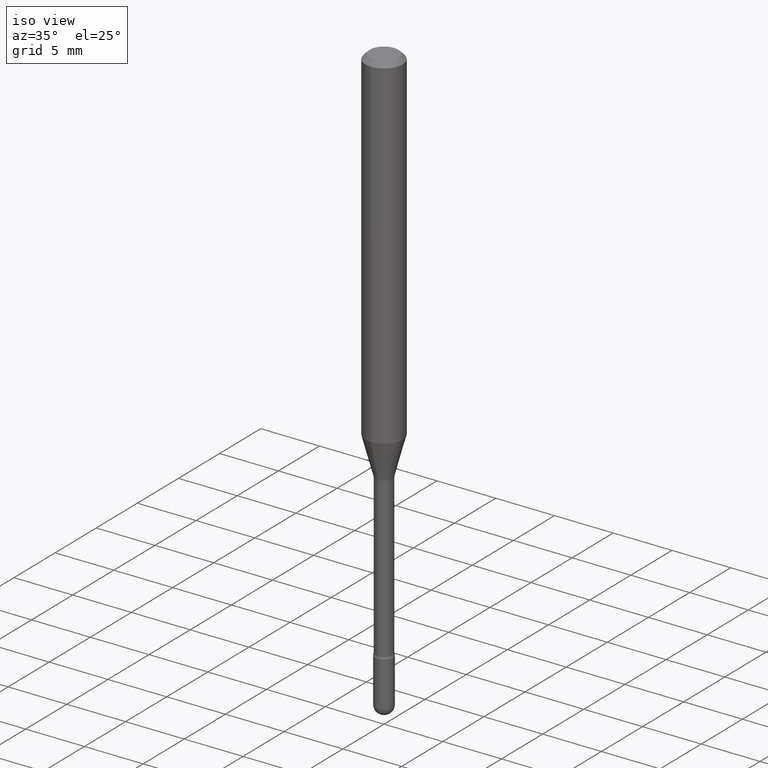
[diagram: clean part render]
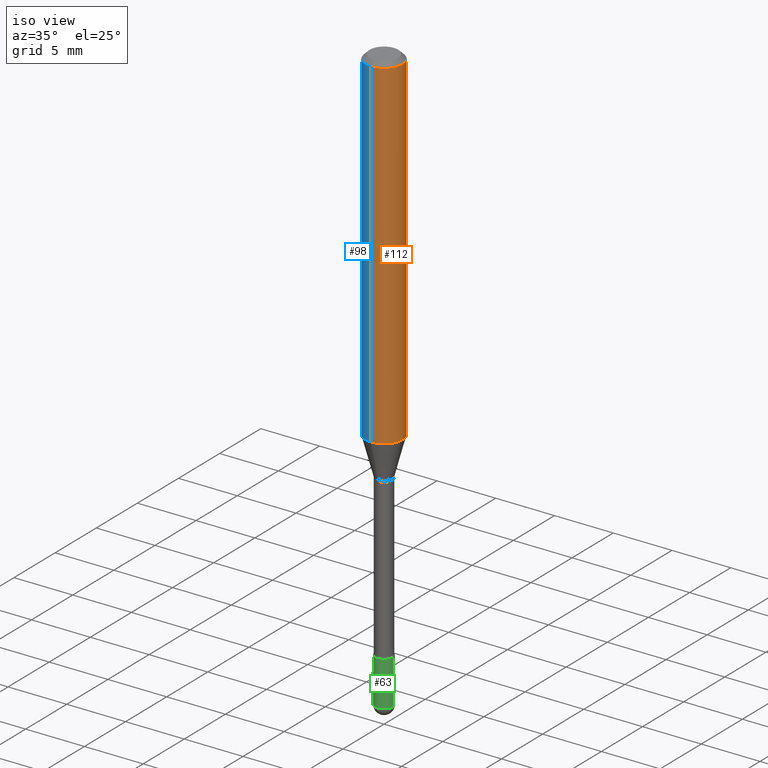
[diagram: same view with three faces highlighted in distinct colors, each labeled with its STEP entity id]
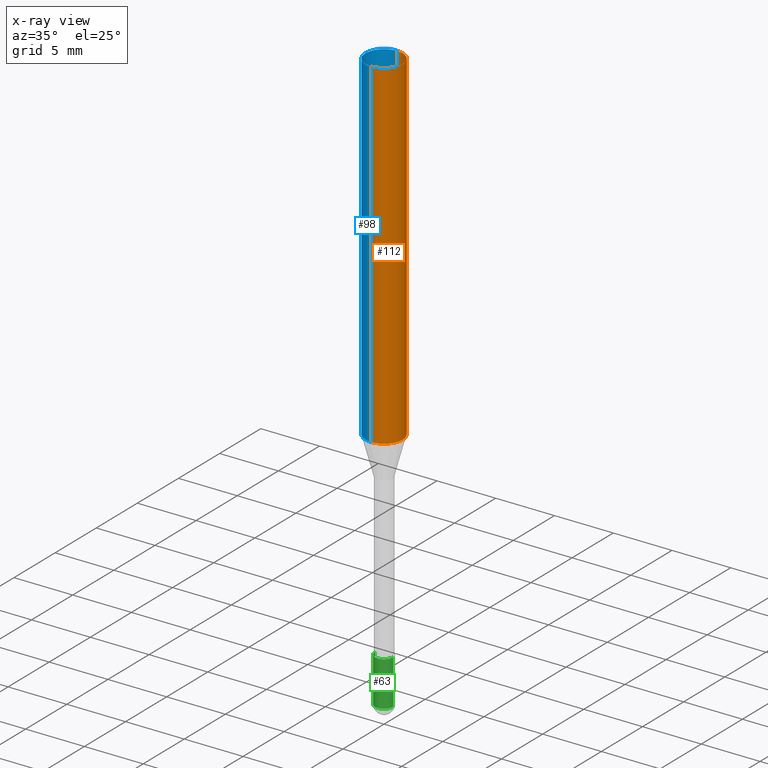
[diagram: x-ray of the same camera — body ghosted, the three highlighted faces saturated]
A machine part, iso view with three faces highlighted in distinct colors.
The next image is the same camera in x-ray (body ghosted, the three faces saturated) — at least one of them is partly hidden behind the body in this view.
Their STEP definitions:

[orange] entity #112 — the highlighted cylindrical surface (edge-blend (fillet) strip) has radius 1.5875 mm, axis along (-0, 0, 1).
#16 = DIRECTION ( 'NONE',  ( -6.982962677686265922E-15, -1.000000000000000000, 4.370956789862821150E-15 ) ) ;
#25 = AXIS2_PLACEMENT_3D ( 'NONE', #182, #273, #16 ) ;
#55 = VECTOR ( 'NONE', #405, 39.37007874015748143 ) ;
#76 = CARTESIAN_POINT ( 'NONE',  ( -4.364351673553916201E-16, -0.06250000000000000000, 6.962906402204286449E-16 ) ) ;
#82 = EDGE_CURVE ( 'NONE', #548, #406, #336, .T. ) ;
#104 = AXIS2_PLACEMENT_3D ( 'NONE', #371, #541, #131 ) ;
#112 = ADVANCED_FACE ( 'NONE', ( #292 ), #164, .T. ) ;
#128 = EDGE_CURVE ( 'NONE', #506, #548, #177, .T. ) ;
#131 = DIRECTION ( 'NONE',  ( -6.982962677686265922E-15, -1.000000000000000000, 3.483106191921935554E-15 ) ) ;
#153 = CIRCLE ( 'NONE', #25, 0.06250000000000000000 ) ;
#155 = EDGE_CURVE ( 'NONE', #506, #210, #153, .T. ) ;
#160 = VECTOR ( 'NONE', #511, 39.37007874015748143 ) ;
#164 = CYLINDRICAL_SURFACE ( 'NONE', #393, 0.06250000000000000000 ) ;
#168 = ORIENTED_EDGE ( 'NONE', *, *, #82, .F. ) ;
#173 = DIRECTION ( 'NONE',  ( -6.982962677686265922E-15, -1.000000000000000000, 3.491475861266921306E-15 ) ) ;
#177 = LINE ( 'NONE', #76, #160 ) ;
#182 = CARTESIAN_POINT ( 'NONE',  ( 2.817161623775705020E-29, -4.022147572369319801E-15, -1.151990657300387744 ) ) ;
#189 = CARTESIAN_POINT ( 'NONE',  ( 4.440892098500625669E-16, 0.06250000000000000000, 2.598561575620634323E-16 ) ) ;
#205 = ORIENTED_EDGE ( 'NONE', *, *, #128, .F. ) ;
#210 = VERTEX_POINT ( 'NONE', #313 ) ;
#234 = CARTESIAN_POINT ( 'NONE',  ( 4.440892098500909166E-16, 0.06249999999999995143, -0.01500000000000030129 ) ) ;
#273 = DIRECTION ( 'NONE',  ( -2.445472631156169936E-29, 3.491475861266922095E-15, 1.000000000000000000 ) ) ;
#292 = FACE_OUTER_BOUND ( 'NONE', #302, .T. ) ;
#302 = EDGE_LOOP ( 'NONE', ( #423, #355, #168, #205 ) ) ;
#313 = CARTESIAN_POINT ( 'NONE',  ( 4.440892098500905221E-16, 0.06249999999999596156, -1.151990657300388188 ) ) ;
#336 = CIRCLE ( 'NONE', #104, 0.06250000000000000000 ) ;
#350 = CARTESIAN_POINT ( 'NONE',  ( -4.364351673553912750E-16, -0.06250000000000005551, -0.01499999999999986587 ) ) ;
#352 = EDGE_CURVE ( 'NONE', #210, #406, #375, .T. ) ;
#355 = ORIENTED_EDGE ( 'NONE', *, *, #352, .T. ) ;
#371 = CARTESIAN_POINT ( 'NONE',  ( 3.668208946734274889E-31, -5.237213791900411517E-17, -0.01500000000000008271 ) ) ;
#375 = LINE ( 'NONE', #189, #55 ) ;
#390 = CARTESIAN_POINT ( 'NONE',  ( -1.169113584055446105E-44, 1.669184350826100908E-30, 4.780733988912460139E-16 ) ) ;
#393 = AXIS2_PLACEMENT_3D ( 'NONE', #390, #420, #173 ) ;
#405 = DIRECTION ( 'NONE',  ( -2.445472631156169936E-29, 3.491475861266922489E-15, 1.000000000000000000 ) ) ;
#406 = VERTEX_POINT ( 'NONE', #234 ) ;
#420 = DIRECTION ( 'NONE',  ( -2.445472631156169936E-29, 3.491475861266922095E-15, 1.000000000000000000 ) ) ;
#423 = ORIENTED_EDGE ( 'NONE', *, *, #155, .T. ) ;
#506 = VERTEX_POINT ( 'NONE', #508 ) ;
#508 = CARTESIAN_POINT ( 'NONE',  ( -4.364351673553637142E-16, -0.06250000000000405231, -1.151990657300387522 ) ) ;
#511 = DIRECTION ( 'NONE',  ( -2.445472631156169936E-29, 3.491475861266922489E-15, 1.000000000000000000 ) ) ;
#541 = DIRECTION ( 'NONE',  ( -2.445472631156169936E-29, 3.491475861266922095E-15, 1.000000000000000000 ) ) ;
#548 = VERTEX_POINT ( 'NONE', #350 ) ;

[blue] entity #98 — the highlighted cylindrical surface (edge-blend (fillet) strip) has radius 1.5875 mm, axis along (-0, 0, 1).
#5 = CIRCLE ( 'NONE', #69, 0.06250000000000000000 ) ;
#44 = EDGE_LOOP ( 'NONE', ( #380, #439, #113, #360 ) ) ;
#55 = VECTOR ( 'NONE', #405, 39.37007874015748143 ) ;
#69 = AXIS2_PLACEMENT_3D ( 'NONE', #346, #472, #562 ) ;
#76 = CARTESIAN_POINT ( 'NONE',  ( -4.364351673553916201E-16, -0.06250000000000000000, 6.962906402204286449E-16 ) ) ;
#98 = ADVANCED_FACE ( 'NONE', ( #343 ), #122, .T. ) ;
#103 = EDGE_CURVE ( 'NONE', #406, #548, #5, .T. ) ;
#109 = CARTESIAN_POINT ( 'NONE',  ( 2.817161623775705020E-29, -4.022147572369319801E-15, -1.151990657300387744 ) ) ;
#113 = ORIENTED_EDGE ( 'NONE', *, *, #128, .T. ) ;
#119 = DIRECTION ( 'NONE',  ( -6.982962677686265922E-15, -1.000000000000000000, 3.491475861266921306E-15 ) ) ;
#122 = CYLINDRICAL_SURFACE ( 'NONE', #408, 0.06250000000000000000 ) ;
#128 = EDGE_CURVE ( 'NONE', #506, #548, #177, .T. ) ;
#160 = VECTOR ( 'NONE', #511, 39.37007874015748143 ) ;
#177 = LINE ( 'NONE', #76, #160 ) ;
#189 = CARTESIAN_POINT ( 'NONE',  ( 4.440892098500625669E-16, 0.06250000000000000000, 2.598561575620634323E-16 ) ) ;
#210 = VERTEX_POINT ( 'NONE', #313 ) ;
#212 = DIRECTION ( 'NONE',  ( -2.445472631156169936E-29, 3.491475861266922095E-15, 1.000000000000000000 ) ) ;
#234 = CARTESIAN_POINT ( 'NONE',  ( 4.440892098500909166E-16, 0.06249999999999995143, -0.01500000000000030129 ) ) ;
#239 = AXIS2_PLACEMENT_3D ( 'NONE', #109, #367, #461 ) ;
#251 = CARTESIAN_POINT ( 'NONE',  ( -1.169113584055446105E-44, 1.669184350826100908E-30, 4.780733988912460139E-16 ) ) ;
#313 = CARTESIAN_POINT ( 'NONE',  ( 4.440892098500905221E-16, 0.06249999999999596156, -1.151990657300388188 ) ) ;
#343 = FACE_OUTER_BOUND ( 'NONE', #44, .T. ) ;
#346 = CARTESIAN_POINT ( 'NONE',  ( 3.668208946734274889E-31, -5.237213791900411517E-17, -0.01500000000000008271 ) ) ;
#350 = CARTESIAN_POINT ( 'NONE',  ( -4.364351673553912750E-16, -0.06250000000000005551, -0.01499999999999986587 ) ) ;
#352 = EDGE_CURVE ( 'NONE', #210, #406, #375, .T. ) ;
#360 = ORIENTED_EDGE ( 'NONE', *, *, #103, .F. ) ;
#367 = DIRECTION ( 'NONE',  ( -2.445472631156169936E-29, 3.491475861266922095E-15, 1.000000000000000000 ) ) ;
#370 = EDGE_CURVE ( 'NONE', #210, #506, #526, .T. ) ;
#375 = LINE ( 'NONE', #189, #55 ) ;
#380 = ORIENTED_EDGE ( 'NONE', *, *, #352, .F. ) ;
#405 = DIRECTION ( 'NONE',  ( -2.445472631156169936E-29, 3.491475861266922489E-15, 1.000000000000000000 ) ) ;
#406 = VERTEX_POINT ( 'NONE', #234 ) ;
#408 = AXIS2_PLACEMENT_3D ( 'NONE', #251, #212, #119 ) ;
#439 = ORIENTED_EDGE ( 'NONE', *, *, #370, .T. ) ;
#461 = DIRECTION ( 'NONE',  ( -6.982962677686265922E-15, -1.000000000000000000, 4.370956789862821150E-15 ) ) ;
#472 = DIRECTION ( 'NONE',  ( -2.445472631156169936E-29, 3.491475861266922095E-15, 1.000000000000000000 ) ) ;
#506 = VERTEX_POINT ( 'NONE', #508 ) ;
#508 = CARTESIAN_POINT ( 'NONE',  ( -4.364351673553637142E-16, -0.06250000000000405231, -1.151990657300387522 ) ) ;
#511 = DIRECTION ( 'NONE',  ( -2.445472631156169936E-29, 3.491475861266922489E-15, 1.000000000000000000 ) ) ;
#526 = CIRCLE ( 'NONE', #239, 0.06250000000000000000 ) ;
#548 = VERTEX_POINT ( 'NONE', #350 ) ;
#562 = DIRECTION ( 'NONE',  ( -6.982962677686265922E-15, -1.000000000000000000, 3.483106191921935554E-15 ) ) ;

[green] entity #63 — the highlighted cylindrical surface (edge-blend (fillet) strip) has radius 0.762 mm, axis along (-0, 0, 1).
#6 = EDGE_LOOP ( 'NONE', ( #266, #74, #245, #470, #261 ) ) ;
#32 = DIRECTION ( 'NONE',  ( -2.445468806185136597E-29, 3.491481338843145583E-15, 1.000000000000000000 ) ) ;
#63 = ADVANCED_FACE ( 'NONE', ( #297 ), #476, .T. ) ;
#74 = ORIENTED_EDGE ( 'NONE', *, *, #540, .T. ) ;
#85 = DIRECTION ( 'NONE',  ( -2.445468806185136597E-29, 3.491481338843145583E-15, 1.000000000000000000 ) ) ;
#89 = LINE ( 'NONE', #136, #309 ) ;
#117 = CARTESIAN_POINT ( 'NONE',  ( 4.817573548184719118E-29, -6.878218237520997007E-15, -1.969999999999999973 ) ) ;
#120 = CARTESIAN_POINT ( 'NONE',  ( -0.03000000000000000583, 2.131628207280300972E-16, -1.475680527076471882E-30 ) ) ;
#125 = DIRECTION ( 'NONE',  ( -2.445468806185136877E-29, 3.491481338843145188E-15, 1.000000000000000000 ) ) ;
#136 = CARTESIAN_POINT ( 'NONE',  ( 0.03000000000000000583, -2.094888803305880457E-16, 1.462853032738781053E-30 ) ) ;
#141 = EDGE_CURVE ( 'NONE', #503, #513, #425, .T. ) ;
#144 = CARTESIAN_POINT ( 'NONE',  ( -0.03000000000000000583, -6.403194316379730971E-15, -1.969999999999999973 ) ) ;
#161 = AXIS2_PLACEMENT_3D ( 'NONE', #117, #32, #262 ) ;
#175 = CIRCLE ( 'NONE', #458, 0.02999999999999999889 ) ;
#190 = CARTESIAN_POINT ( 'NONE',  ( -0.02999999999999999889, -6.403194316379730971E-15, -1.820000000000000062 ) ) ;
#194 = EDGE_CURVE ( 'NONE', #513, #486, #89, .T. ) ;
#201 = AXIS2_PLACEMENT_3D ( 'NONE', #411, #236, #419 ) ;
#206 = VERTEX_POINT ( 'NONE', #190 ) ;
#226 = VECTOR ( 'NONE', #125, 39.37007874015748143 ) ;
#236 = DIRECTION ( 'NONE',  ( -2.445468806185136597E-29, 3.491481338843145583E-15, 1.000000000000000000 ) ) ;
#242 = LINE ( 'NONE', #120, #226 ) ;
#245 = ORIENTED_EDGE ( 'NONE', *, *, #141, .T. ) ;
#256 = CARTESIAN_POINT ( 'NONE',  ( 4.817573548184719118E-29, -6.878218237520997007E-15, -1.969999999999999973 ) ) ;
#261 = ORIENTED_EDGE ( 'NONE', *, *, #471, .F. ) ;
#262 = DIRECTION ( 'NONE',  ( 1.000000000000000000, -6.982962677686266711E-15, 0.000000000000000000 ) ) ;
#265 = CIRCLE ( 'NONE', #161, 0.03000000000000000583 ) ;
#266 = ORIENTED_EDGE ( 'NONE', *, *, #454, .F. ) ;
#297 = FACE_OUTER_BOUND ( 'NONE', #6, .T. ) ;
#309 = VECTOR ( 'NONE', #403, 39.37007874015748143 ) ;
#381 = VERTEX_POINT ( 'NONE', #144 ) ;
#382 = CARTESIAN_POINT ( 'NONE',  ( 4.450753227256948741E-29, -6.354496036694524637E-15, -1.820000000000000062 ) ) ;
#387 = DIRECTION ( 'NONE',  ( -2.445468806185136597E-29, 3.491481338843145583E-15, 1.000000000000000000 ) ) ;
#403 = DIRECTION ( 'NONE',  ( -2.445468806185136877E-29, 3.491481338843145188E-15, 1.000000000000000000 ) ) ;
#411 = CARTESIAN_POINT ( 'NONE',  ( 0.000000000000000000, 0.000000000000000000, 0.000000000000000000 ) ) ;
#419 = DIRECTION ( 'NONE',  ( 1.000000000000000000, -6.982962677686266711E-15, 4.876176775795935793E-29 ) ) ;
#425 = CIRCLE ( 'NONE', #487, 0.03000000000000000583 ) ;
#450 = DIRECTION ( 'NONE',  ( 1.000000000000000000, -6.982962677686266711E-15, 0.000000000000000000 ) ) ;
#454 = EDGE_CURVE ( 'NONE', #381, #206, #242, .T. ) ;
#458 = AXIS2_PLACEMENT_3D ( 'NONE', #382, #387, #554 ) ;
#470 = ORIENTED_EDGE ( 'NONE', *, *, #194, .T. ) ;
#471 = EDGE_CURVE ( 'NONE', #206, #486, #175, .T. ) ;
#476 = CYLINDRICAL_SURFACE ( 'NONE', #201, 0.03000000000000000583 ) ;
#480 = CARTESIAN_POINT ( 'NONE',  ( 0.03000000000000000583, -6.825846017438348744E-15, -1.969999999999999973 ) ) ;
#486 = VERTEX_POINT ( 'NONE', #514 ) ;
#487 = AXIS2_PLACEMENT_3D ( 'NONE', #256, #85, #450 ) ;
#503 = VERTEX_POINT ( 'NONE', #550 ) ;
#513 = VERTEX_POINT ( 'NONE', #480 ) ;
#514 = CARTESIAN_POINT ( 'NONE',  ( 0.02999999999999999889, -6.563984917025112954E-15, -1.820000000000000062 ) ) ;
#540 = EDGE_CURVE ( 'NONE', #381, #503, #265, .T. ) ;
#550 = CARTESIAN_POINT ( 'NONE',  ( -2.131628207279818041E-16, -0.03000000000000686839, -1.969999999999999973 ) ) ;
#554 = DIRECTION ( 'NONE',  ( 1.000000000000000000, -6.982962677686268288E-15, 0.000000000000000000 ) ) ;